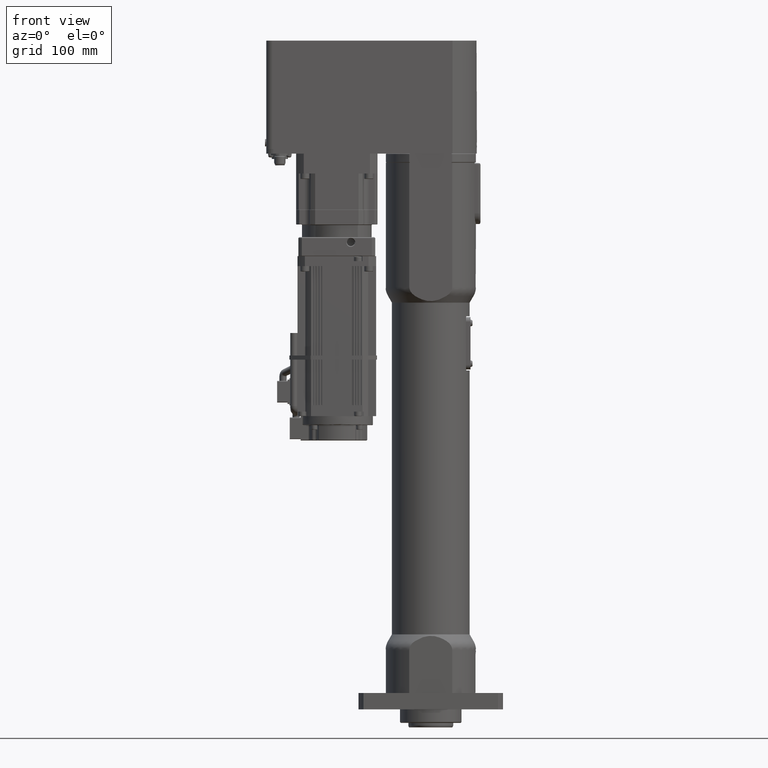
[diagram: clean part render]
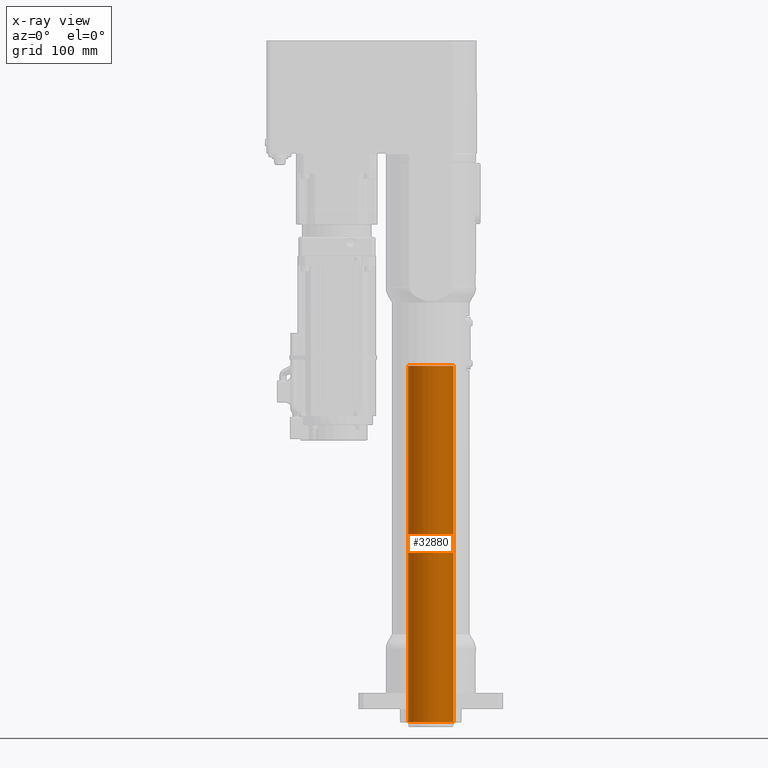
[diagram: x-ray — body ghosted, one internal face saturated and labeled with its STEP entity id]
A machine part, front view, then the same camera in x-ray: the body is ghosted and one INTERNAL B-rep face — a face not visible from any outside direction — is saturated and labeled: STEP entity #32880.
In plain terms, the highlighted cylindrical surface (bore or boss wall) has radius 25 mm, axis along (0, -0, -1).
Its self-contained STEP definition (entity closure, byte-faithful):
#3893=LINE('',#56222,#6546);
#6546=VECTOR('',#44573,25.);
#7330=CYLINDRICAL_SURFACE('',#35976,25.);
#8934=FACE_OUTER_BOUND('',#10844,.T.);
#10844=EDGE_LOOP('',(#28653,#28654,#28655,#28656));
#11875=CIRCLE('',#34291,25.);
#12537=CIRCLE('',#35975,25.);
#13856=VERTEX_POINT('',#50093);
#15509=VERTEX_POINT('',#56219);
#17347=EDGE_CURVE('',#13856,#13856,#11875,.T.);
#19965=EDGE_CURVE('',#15509,#15509,#12537,.T.);
#19966=EDGE_CURVE('',#15509,#13856,#3893,.T.);
#28653=ORIENTED_EDGE('',*,*,#19965,.T.);
#28654=ORIENTED_EDGE('',*,*,#19966,.T.);
#28655=ORIENTED_EDGE('',*,*,#17347,.T.);
#28656=ORIENTED_EDGE('',*,*,#19966,.F.);
#32880=ADVANCED_FACE('',(#8934),#7330,.F.);
#34291=AXIS2_PLACEMENT_3D('',#50094,#39462,#39463);
#35975=AXIS2_PLACEMENT_3D('',#56220,#44569,#44570);
#35976=AXIS2_PLACEMENT_3D('',#56221,#44571,#44572);
#39462=DIRECTION('center_axis',(1.83229888043147E-15,-7.79443320538135E-15,
-1.));
#39463=DIRECTION('ref_axis',(-1.6993076876159E-13,-1.,8.18931283179782E-15));
#44569=DIRECTION('center_axis',(-1.69922289511328E-13,8.18931283182669E-15,
1.));
#44570=DIRECTION('ref_axis',(-1.,0.,-1.69922289511328E-13));
#44571=DIRECTION('center_axis',(1.69923334662295E-13,-8.18931283182669E-15,
-1.));
#44572=DIRECTION('ref_axis',(-1.,-8.55906823556316E-33,-1.69923334662295E-13));
#44573=DIRECTION('',(1.69923334662295E-13,-8.18931283182669E-15,-1.));
#50093=CARTESIAN_POINT('',(25.000000000124,-2.76186447330732E-11,-13.9999999999451));
#50094=CARTESIAN_POINT('Origin',(1.24050885270937E-10,-2.76155831160753E-11,
-13.9999999999447));
#56219=CARTESIAN_POINT('',(25.0000000000574,-2.44254202059797E-11,380.000000000025));
#56220=CARTESIAN_POINT('Origin',(5.74223096715512E-11,-2.44284818229776E-11,
380.000000000021));
#56221=CARTESIAN_POINT('Origin',(1.25070419008011E-10,-2.76647189930665E-11,
-19.9999999999789));
#56222=CARTESIAN_POINT('',(25.0000000001251,-2.76677806100644E-11,-19.9999999999747));